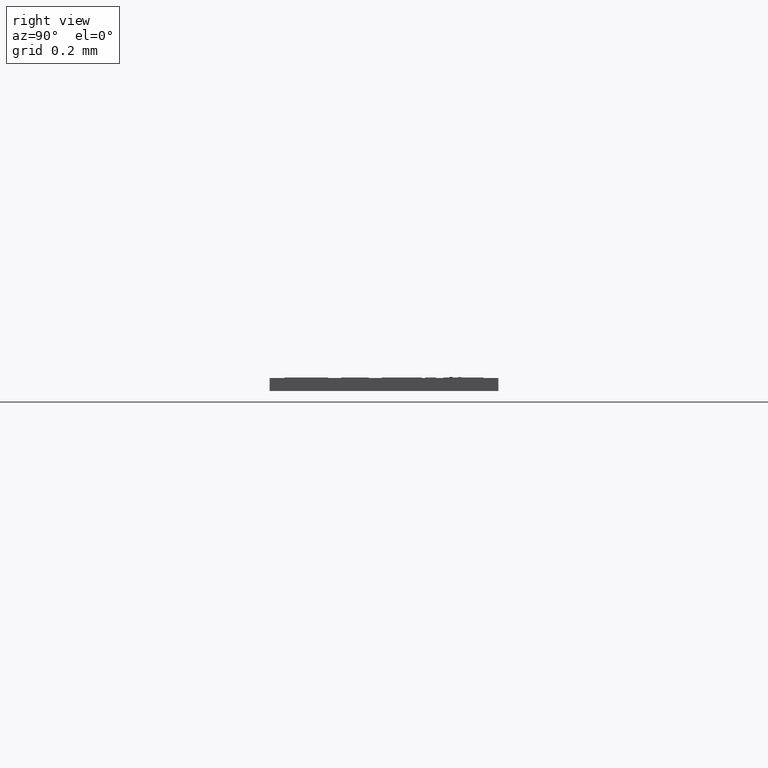
[diagram: clean part render]
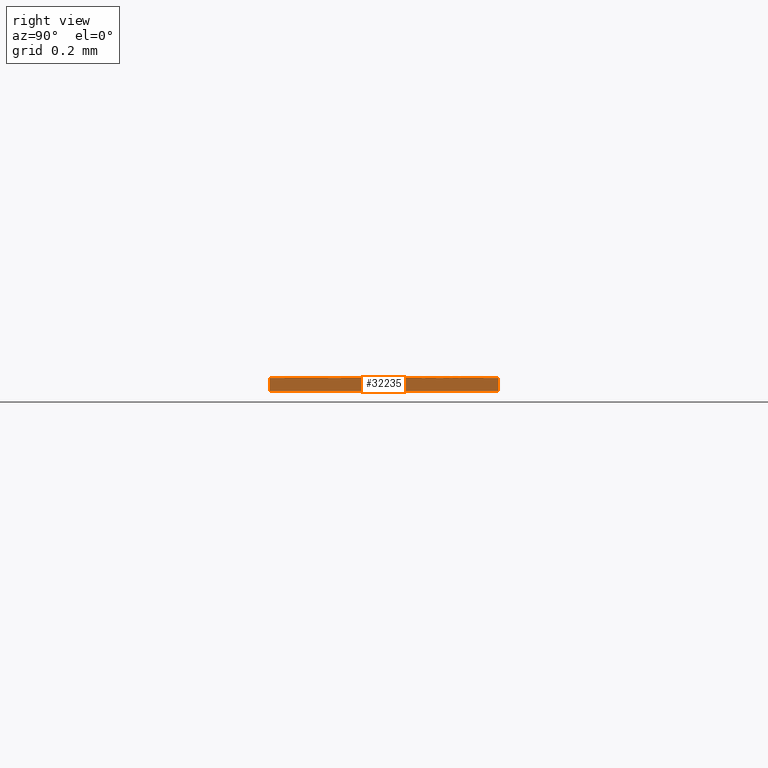
[diagram: same view with one face highlighted and labeled with its STEP entity id]
A machine part, right view. The second image highlights one B-rep face of the part: STEP entity #32235.
In plain terms, the highlighted planar face has unit normal (1, 0, 0).
Its self-contained STEP definition (entity closure, byte-faithful):
#29497=CARTESIAN_POINT('',(0.100984251968504,0.0,0.001889763779528));
#29498=VERTEX_POINT('',#29497);
#29507=CARTESIAN_POINT('',(0.100984251968504,0.033267716535433,0.001889763779528));
#29508=VERTEX_POINT('',#29507);
#29509=CARTESIAN_POINT('',(0.100984251968504,0.033267716535433,0.001889763779528));
#29510=DIRECTION('',(0.0,-1.0,0.0));
#29511=VECTOR('',#29510,0.033267716535433);
#29512=LINE('',#29509,#29511);
#29513=EDGE_CURVE('',#29508,#29498,#29512,.T.);
#30620=CARTESIAN_POINT('',(0.100984251968504,0.0,0.0));
#30621=VERTEX_POINT('',#30620);
#30628=CARTESIAN_POINT('',(0.100984251968504,0.0,0.0));
#30629=DIRECTION('',(0.0,0.0,1.0));
#30630=VECTOR('',#30629,0.001889763779528);
#30631=LINE('',#30628,#30630);
#30632=EDGE_CURVE('',#30621,#29498,#30631,.T.);
#32201=CARTESIAN_POINT('',(0.100984251968504,0.033267716535433,0.0));
#32202=VERTEX_POINT('',#32201);
#32203=CARTESIAN_POINT('',(0.100984251968504,0.033267716535433,0.0));
#32204=DIRECTION('',(0.0,0.0,1.0));
#32205=VECTOR('',#32204,0.001889763779528);
#32206=LINE('',#32203,#32205);
#32207=EDGE_CURVE('',#32202,#29508,#32206,.T.);
#32219=CARTESIAN_POINT('',(0.100984251968504,0.033267716535433,0.0));
#32220=DIRECTION('',(1.0,0.0,0.0));
#32221=DIRECTION('',(0.0,0.0,-1.0));
#32222=AXIS2_PLACEMENT_3D('',#32219,#32220,#32221);
#32223=PLANE('',#32222);
#32224=ORIENTED_EDGE('',*,*,#29513,.T.);
#32225=ORIENTED_EDGE('',*,*,#30632,.F.);
#32226=CARTESIAN_POINT('',(0.100984251968504,0.0,0.0));
#32227=DIRECTION('',(0.0,1.0,0.0));
#32228=VECTOR('',#32227,0.033267716535433);
#32229=LINE('',#32226,#32228);
#32230=EDGE_CURVE('',#30621,#32202,#32229,.T.);
#32231=ORIENTED_EDGE('',*,*,#32230,.T.);
#32232=ORIENTED_EDGE('',*,*,#32207,.T.);
#32233=EDGE_LOOP('',(#32224,#32225,#32231,#32232));
#32234=FACE_OUTER_BOUND('',#32233,.T.);
#32235=ADVANCED_FACE('',(#32234),#32223,.T.);